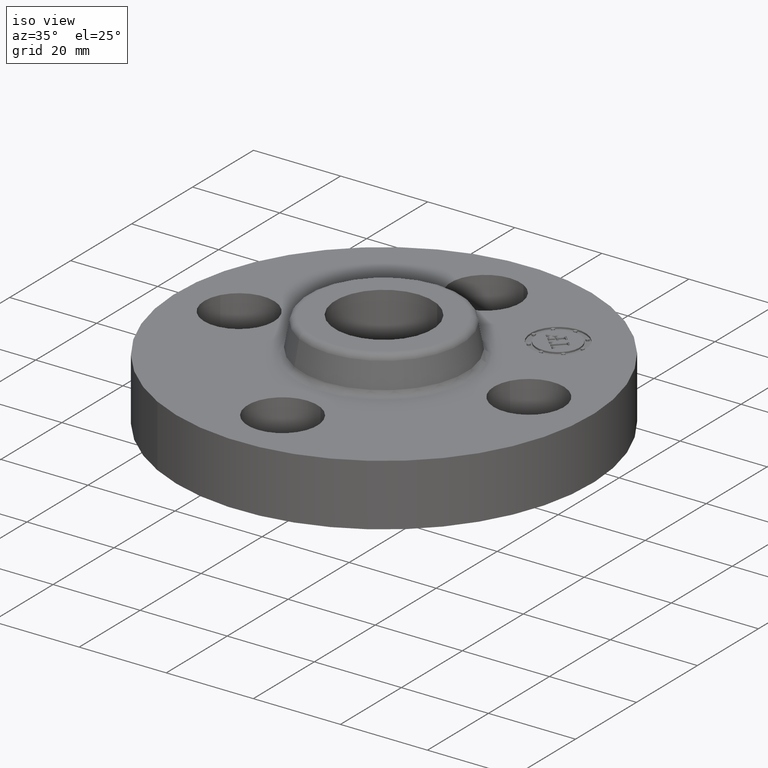
[diagram: clean part render]
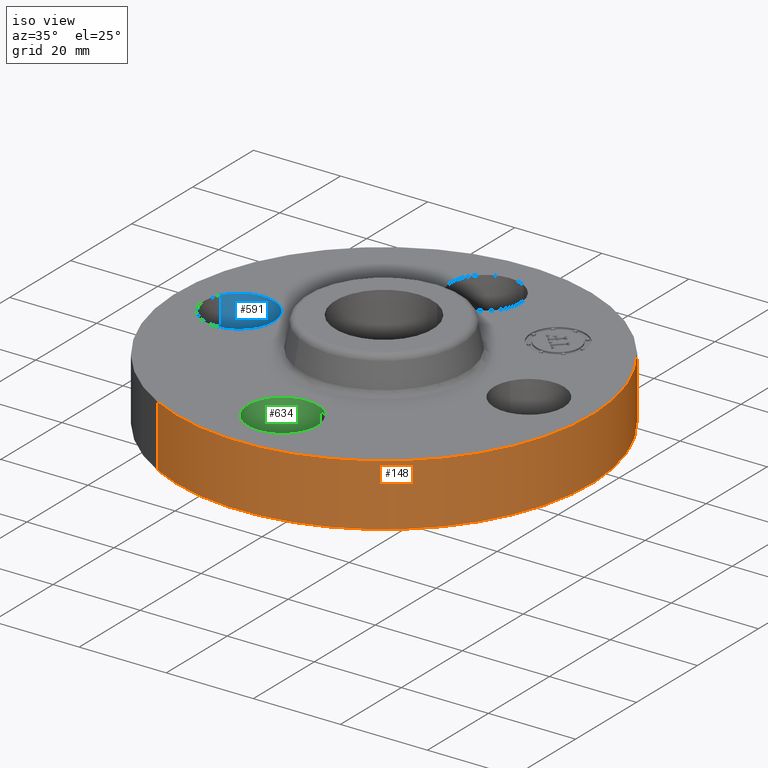
[diagram: same view with three faces highlighted in distinct colors, each labeled with its STEP entity id]
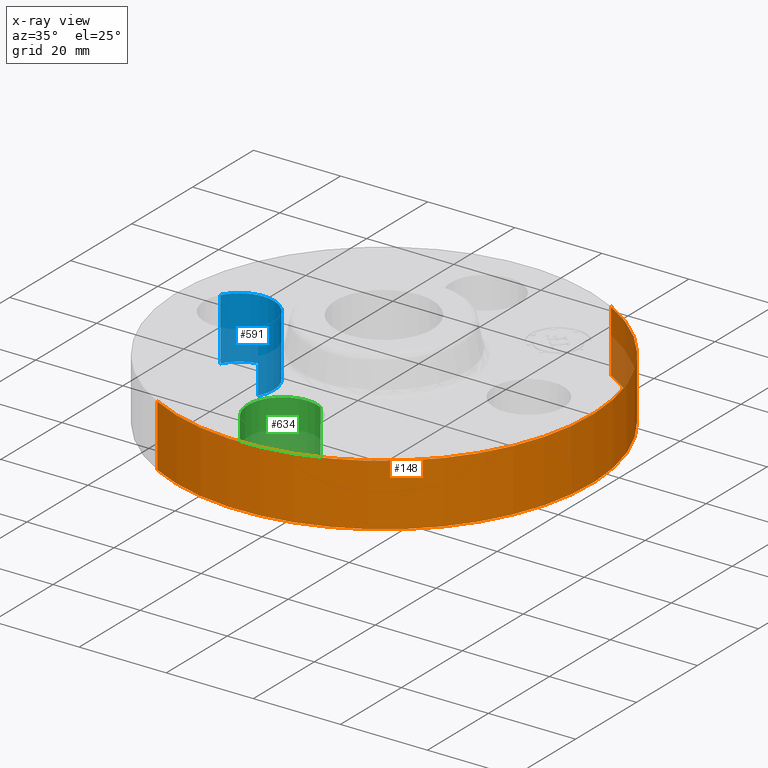
[diagram: x-ray of the same camera — body ghosted, the three highlighted faces saturated]
A machine part, iso view with three faces highlighted in distinct colors.
The next image is the same camera in x-ray (body ghosted, the three faces saturated) — at least one of them is partly hidden behind the body in this view.
Their STEP definitions:

[orange] entity #148 — the highlighted cylindrical surface (partial cylindrical patch) has radius 47.625 mm, axis along (0, 0, -1).
#95=AXIS2_PLACEMENT_3D('Cylinder Axis2P3D',#92,#93,#94) ;
#134=AXIS2_PLACEMENT_3D('Circle Axis2P3D',#132,#133,$) ;
#139=AXIS2_PLACEMENT_3D('Circle Axis2P3D',#137,#138,$) ;
#92=CARTESIAN_POINT('Axis2P3D Location',(0.,0.,0.315000000001)) ;
#101=CARTESIAN_POINT('Vertex',(-0.898922884886,-1.64546730355,0.)) ;
#103=CARTESIAN_POINT('Vertex',(0.898922884886,1.64546730355,0.)) ;
#106=CARTESIAN_POINT('Line Origine',(-0.898922884886,-1.64546730355,0.280000000001)) ;
#110=CARTESIAN_POINT('Vertex',(-0.898922884886,-1.64546730355,0.560000000002)) ;
#117=CARTESIAN_POINT('Vertex',(0.898922884886,1.64546730355,0.560000000002)) ;
#120=CARTESIAN_POINT('Line Origine',(0.898922884886,1.64546730355,0.280000000001)) ;
#132=CARTESIAN_POINT('Axis2P3D Location',(0.,0.,6.99353086378E-017)) ;
#137=CARTESIAN_POINT('Axis2P3D Location',(0.,0.,0.560000000002)) ;
#93=DIRECTION('Axis2P3D Direction',(0.,0.,-0.0393700787402)) ;
#94=DIRECTION('Axis2P3D XDirection',(0.0188750212049,0.0345504945626,0.)) ;
#107=DIRECTION('Vector Direction',(0.,0.,-0.0393700787402)) ;
#121=DIRECTION('Vector Direction',(0.,0.,-0.0393700787402)) ;
#133=DIRECTION('Axis2P3D Direction',(0.,0.,-0.0393700787402)) ;
#138=DIRECTION('Axis2P3D Direction',(0.,0.,-0.0393700787402)) ;
#108=VECTOR('Line Direction',#107,0.0393700787402) ;
#122=VECTOR('Line Direction',#121,0.0393700787402) ;
#143=ORIENTED_EDGE('',*,*,#136,.F.) ;
#144=ORIENTED_EDGE('',*,*,#124,.T.) ;
#145=ORIENTED_EDGE('',*,*,#141,.T.) ;
#146=ORIENTED_EDGE('',*,*,#112,.F.) ;
#148=ADVANCED_FACE('PartBody',(#147),#96,.T.) ;
#135=CIRCLE('generated circle',#134,1.87500000001) ;
#140=CIRCLE('generated circle',#139,1.87500000001) ;
#96=CYLINDRICAL_SURFACE('generated cylinder',#95,1.87500000001) ;
#112=EDGE_CURVE('',#102,#111,#109,.F.) ;
#124=EDGE_CURVE('',#104,#118,#123,.F.) ;
#136=EDGE_CURVE('',#104,#102,#135,.T.) ;
#141=EDGE_CURVE('',#118,#111,#140,.T.) ;
#142=EDGE_LOOP('',(#143,#144,#145,#146)) ;
#147=FACE_OUTER_BOUND('',#142,.T.) ;
#109=LINE('Line',#106,#108) ;
#123=LINE('Line',#120,#122) ;
#102=VERTEX_POINT('',#101) ;
#104=VERTEX_POINT('',#103) ;
#111=VERTEX_POINT('',#110) ;
#118=VERTEX_POINT('',#117) ;

[blue] entity #591 — the highlighted cylindrical surface (partial cylindrical patch) has radius 8.001 mm, axis along (-0, 0, -1).
#480=AXIS2_PLACEMENT_3D('Circle Axis2P3D',#478,#479,$) ;
#552=AXIS2_PLACEMENT_3D('Cylinder Axis2P3D',#549,#550,#551) ;
#582=AXIS2_PLACEMENT_3D('Circle Axis2P3D',#580,#581,$) ;
#473=CARTESIAN_POINT('Vertex',(-1.03356149301,-0.151019044661,0.)) ;
#475=CARTESIAN_POINT('Vertex',(-1.586438507,0.151019044661,6.99353086378E-017)) ;
#478=CARTESIAN_POINT('Axis2P3D Location',(-1.31000000001,0.,0.)) ;
#549=CARTESIAN_POINT('Axis2P3D Location',(-1.31000000001,-1.60428730689E-016,0.556062992128)) ;
#554=CARTESIAN_POINT('Line Origine',(-1.03356149301,-0.151019044661,0.280000000001)) ;
#558=CARTESIAN_POINT('Vertex',(-1.03356149301,-0.151019044661,0.560000000002)) ;
#561=CARTESIAN_POINT('Line Origine',(-1.586438507,0.151019044661,0.280000000001)) ;
#565=CARTESIAN_POINT('Vertex',(-1.586438507,0.151019044661,0.560000000002)) ;
#580=CARTESIAN_POINT('Axis2P3D Location',(-1.31000000001,-1.60428730689E-016,0.560000000002)) ;
#479=DIRECTION('Axis2P3D Direction',(0.,0.,-0.0393700787402)) ;
#550=DIRECTION('Axis2P3D Direction',(-0.,0.,-0.0393700787402)) ;
#551=DIRECTION('Axis2P3D XDirection',(-0.0345504945626,0.0188750212049,0.)) ;
#555=DIRECTION('Vector Direction',(0.,0.,-0.0393700787402)) ;
#562=DIRECTION('Vector Direction',(0.,0.,-0.0393700787402)) ;
#581=DIRECTION('Axis2P3D Direction',(-0.,0.,-0.0393700787402)) ;
#556=VECTOR('Line Direction',#555,0.0393700787402) ;
#563=VECTOR('Line Direction',#562,0.0393700787402) ;
#586=ORIENTED_EDGE('',*,*,#567,.F.) ;
#587=ORIENTED_EDGE('',*,*,#482,.T.) ;
#588=ORIENTED_EDGE('',*,*,#560,.T.) ;
#589=ORIENTED_EDGE('',*,*,#584,.F.) ;
#591=ADVANCED_FACE('PartBody',(#590),#553,.F.) ;
#481=CIRCLE('generated circle',#480,0.315000000001) ;
#583=CIRCLE('generated circle',#582,0.315000000001) ;
#553=CYLINDRICAL_SURFACE('generated cylinder',#552,0.315000000001) ;
#482=EDGE_CURVE('',#476,#474,#481,.T.) ;
#560=EDGE_CURVE('',#474,#559,#557,.F.) ;
#567=EDGE_CURVE('',#476,#566,#564,.F.) ;
#584=EDGE_CURVE('',#566,#559,#583,.T.) ;
#585=EDGE_LOOP('',(#586,#587,#588,#589)) ;
#590=FACE_OUTER_BOUND('',#585,.T.) ;
#557=LINE('Line',#554,#556) ;
#564=LINE('Line',#561,#563) ;
#474=VERTEX_POINT('',#473) ;
#476=VERTEX_POINT('',#475) ;
#559=VERTEX_POINT('',#558) ;
#566=VERTEX_POINT('',#565) ;

[green] entity #634 — the highlighted cylindrical surface (partial cylindrical patch) has radius 8.001 mm, axis along (0, -0, -1).
#462=AXIS2_PLACEMENT_3D('Circle Axis2P3D',#460,#461,$) ;
#595=AXIS2_PLACEMENT_3D('Cylinder Axis2P3D',#592,#593,#594) ;
#625=AXIS2_PLACEMENT_3D('Circle Axis2P3D',#623,#624,$) ;
#455=CARTESIAN_POINT('Vertex',(0.151019044661,-1.03356149301,0.)) ;
#457=CARTESIAN_POINT('Vertex',(-0.151019044661,-1.586438507,6.99353086378E-017)) ;
#460=CARTESIAN_POINT('Axis2P3D Location',(-1.39870617276E-016,-1.31000000001,0.)) ;
#592=CARTESIAN_POINT('Axis2P3D Location',(-1.99526869207E-016,-1.31000000001,0.556062992128)) ;
#597=CARTESIAN_POINT('Line Origine',(0.151019044661,-1.03356149301,0.280000000001)) ;
#601=CARTESIAN_POINT('Vertex',(0.151019044661,-1.03356149301,0.560000000002)) ;
#604=CARTESIAN_POINT('Line Origine',(-0.151019044661,-1.586438507,0.280000000001)) ;
#608=CARTESIAN_POINT('Vertex',(-0.151019044661,-1.586438507,0.560000000002)) ;
#623=CARTESIAN_POINT('Axis2P3D Location',(-1.99526869207E-016,-1.31000000001,0.560000000002)) ;
#461=DIRECTION('Axis2P3D Direction',(0.,0.,-0.0393700787402)) ;
#593=DIRECTION('Axis2P3D Direction',(0.,-0.,-0.0393700787402)) ;
#594=DIRECTION('Axis2P3D XDirection',(-0.0188750212049,-0.0345504945626,0.)) ;
#598=DIRECTION('Vector Direction',(0.,0.,-0.0393700787402)) ;
#605=DIRECTION('Vector Direction',(0.,0.,-0.0393700787402)) ;
#624=DIRECTION('Axis2P3D Direction',(0.,-0.,-0.0393700787402)) ;
#599=VECTOR('Line Direction',#598,0.0393700787402) ;
#606=VECTOR('Line Direction',#605,0.0393700787402) ;
#629=ORIENTED_EDGE('',*,*,#610,.F.) ;
#630=ORIENTED_EDGE('',*,*,#464,.T.) ;
#631=ORIENTED_EDGE('',*,*,#603,.T.) ;
#632=ORIENTED_EDGE('',*,*,#627,.F.) ;
#634=ADVANCED_FACE('PartBody',(#633),#596,.F.) ;
#463=CIRCLE('generated circle',#462,0.315000000001) ;
#626=CIRCLE('generated circle',#625,0.315000000001) ;
#596=CYLINDRICAL_SURFACE('generated cylinder',#595,0.315000000001) ;
#464=EDGE_CURVE('',#458,#456,#463,.T.) ;
#603=EDGE_CURVE('',#456,#602,#600,.F.) ;
#610=EDGE_CURVE('',#458,#609,#607,.F.) ;
#627=EDGE_CURVE('',#609,#602,#626,.T.) ;
#628=EDGE_LOOP('',(#629,#630,#631,#632)) ;
#633=FACE_OUTER_BOUND('',#628,.T.) ;
#600=LINE('Line',#597,#599) ;
#607=LINE('Line',#604,#606) ;
#456=VERTEX_POINT('',#455) ;
#458=VERTEX_POINT('',#457) ;
#602=VERTEX_POINT('',#601) ;
#609=VERTEX_POINT('',#608) ;